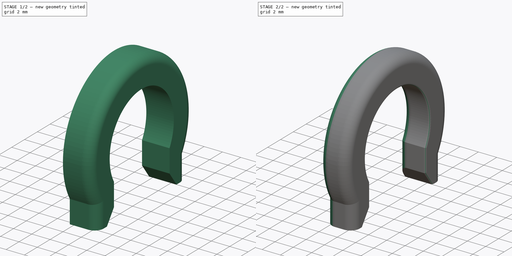
[diagram: build sequence overview — one tinted view per stage of 2, left to right]
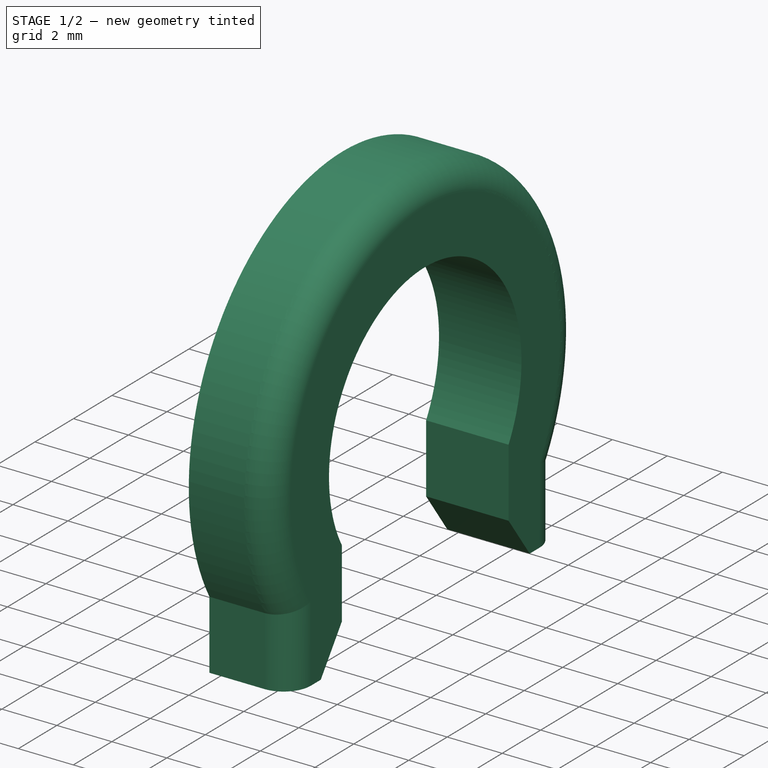
[diagram: stage 1 of 2 — iso view after this stage's code; geometry added in this stage tinted green]
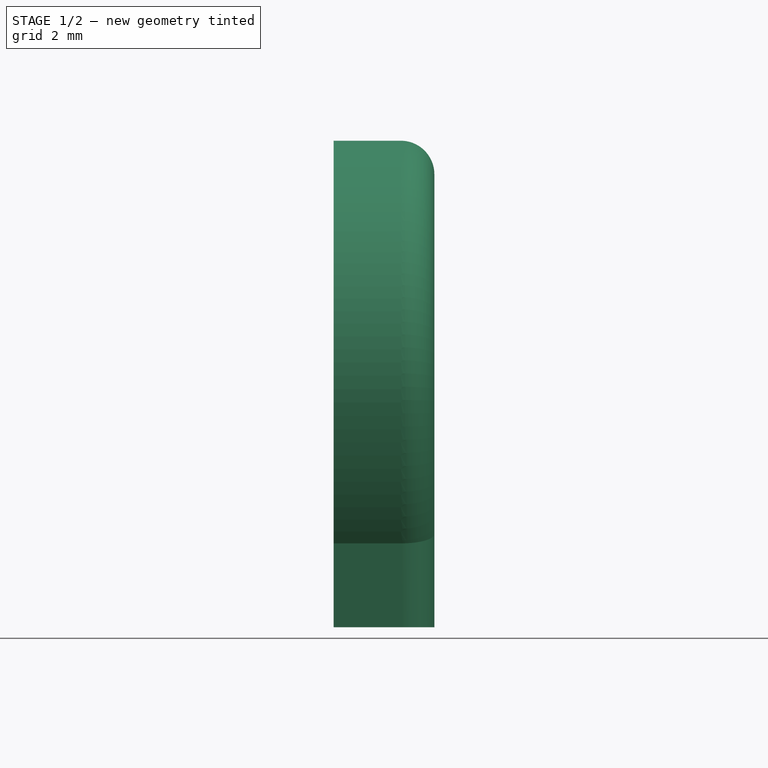
[diagram: stage 1 of 2 — front view after this stage's code; geometry added in this stage tinted green]
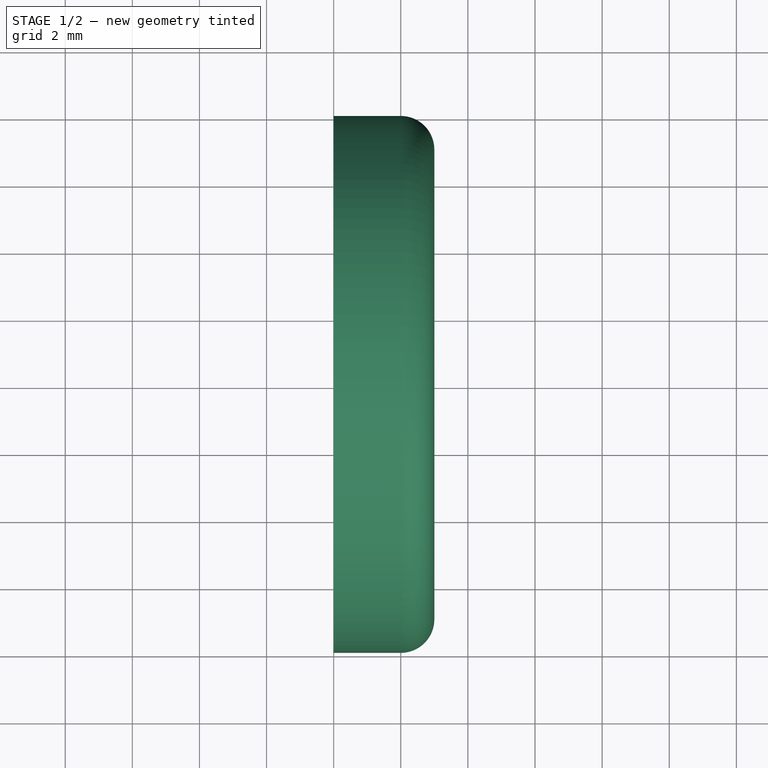
[diagram: stage 1 of 2 — top view after this stage's code; geometry added in this stage tinted green]
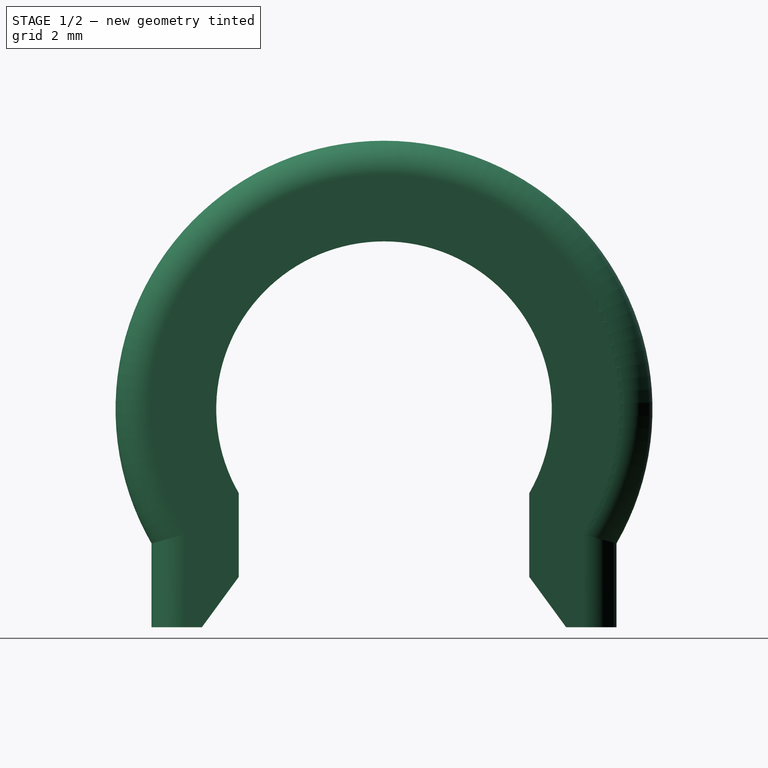
[diagram: stage 1 of 2 — right view after this stage's code; geometry added in this stage tinted green]
FCSTD DOCUMENT  (FreeCAD 1.0R38641 +468 (Git))
Label: probe-holder-4-mm-screw-clip
License: All rights reserved
LicenseURL: http://en.wikipedia.org/wiki/All_rights_reserved
objects: PartDesign::Fillet×3, Sketcher::SketchObject×1, PartDesign::Pad×1, PartDesign::Body×1
note: 15 computed .brp shape members not serialized (recipe doc carries the construction recipe); baked Part::Feature solids carry a one-line shape summary decoded from their .brp

FEATURE [Sketcher::SketchObject] Sketch
  ArcFitTolerance = 1e-06
  AttachmentSupport = -> [YZ_Plane]
  FullyConstrained = true
  MakeInternals = false
  MapMode = 5
  Placement = pos=(0,0,0) rot=(0.57735,0.57735,0.57735;2.0944rad)
  sketch-geometry (10):
    g0: ArcOfCircle CenterX=0 CenterY=0 CenterZ=0 NormalX=0 NormalY=0 NormalZ=1 AngleXU=0 Radius=5 StartAngle=5.75959 EndAngle=9.94838
    g1: ArcOfCircle CenterX=0 CenterY=0 CenterZ=0 NormalX=0 NormalY=0 NormalZ=1 AngleXU=0 Radius=8 StartAngle=5.75959 EndAngle=9.94838
    g2: LineSegment StartX=-6.9282 StartY=-4 StartZ=0 EndX=-6.9282 EndY=-6.5 EndZ=0
    g3: LineSegment StartX=-6.9282 StartY=-6.5 StartZ=0 EndX=-5.4282 EndY=-6.5 EndZ=0
    g4: LineSegment StartX=-4.33013 StartY=-2.5 StartZ=0 EndX=-4.33013 EndY=-5 EndZ=0
    g5: LineSegment StartX=-4.33013 StartY=-5 StartZ=0 EndX=-5.4282 EndY=-6.5 EndZ=0
    g6: LineSegment StartX=6.9282 StartY=-4 StartZ=0 EndX=6.9282 EndY=-6.5 EndZ=0
    g7: LineSegment StartX=4.33013 StartY=-2.5 StartZ=0 EndX=4.33013 EndY=-5 EndZ=0
    g8: LineSegment StartX=6.9282 StartY=-6.5 StartZ=0 EndX=5.4282 EndY=-6.5 EndZ=0
    g9: LineSegment StartX=4.33013 StartY=-5 StartZ=0 EndX=5.4282 EndY=-6.5 EndZ=0
  constraints (30):
    c: Radius(g0) = 5
    c: Angle(g0) = 4.18879
    c: Coincident(g0,g-1)
    c: Horizontal(g0,g0)
    c: Radius(g1) = 8
    c: Angle(g1) = 4.18879
    c: Coincident(g1,g0)
    c: Horizontal(g1,g1)
    c: Distance(g2) = 2.5
    c: Coincident(g2,g1)
    c: Vertical(g2)
    c: Distance(g3) = 1.5
    c: Coincident(g3,g2)
    c: Horizontal(g3)
    c: Distance(g4) = 2.5
    c: Coincident(g4,g0)
    c: Vertical(g4)
    c: Coincident(g5,g4)
    c: Coincident(g5,g3)
    c: Distance(g6) = 2.5
    c: Coincident(g6,g1)
    c: Vertical(g6)
    c: Distance(g7) = 2.5
    c: Coincident(g7,g0)
    c: Vertical(g7)
    c: Distance(g8) = 1.5
    c: Coincident(g8,g6)
    c: Horizontal(g8)
    c: Coincident(g9,g7)
    c: Coincident(g9,g8)
FEATURE [PartDesign::Pad] Pad
  Direction = (1,0,0)
  Length = 3
  Length2 = 10
  Placement = pos=(0,0,0) rot=(1,1,1;2.0944rad)
  Profile = -> Sketch
  ReferenceAxis = -> Sketch [N_Axis]
  Refine = true
  Suppressed = false
  Type = 0
FEATURE [PartDesign::Fillet] Fillet
  Base = -> Pad [Edge16,Edge19,Edge22]
  BaseFeature = -> Pad
  Placement = pos=(0,0,0) rot=(1,1,1;2.0944rad)
  Radius = 1
  Refine = true
  SupportTransform = false
  Suppressed = false
  UseAllEdges = false
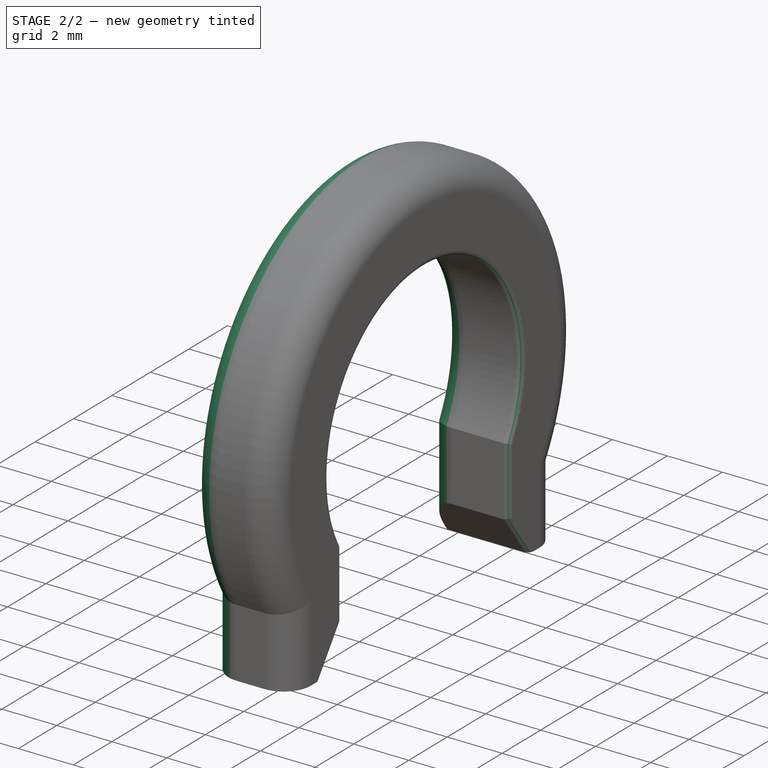
[diagram: stage 2 of 2 — iso view after this stage's code; geometry added in this stage tinted green]
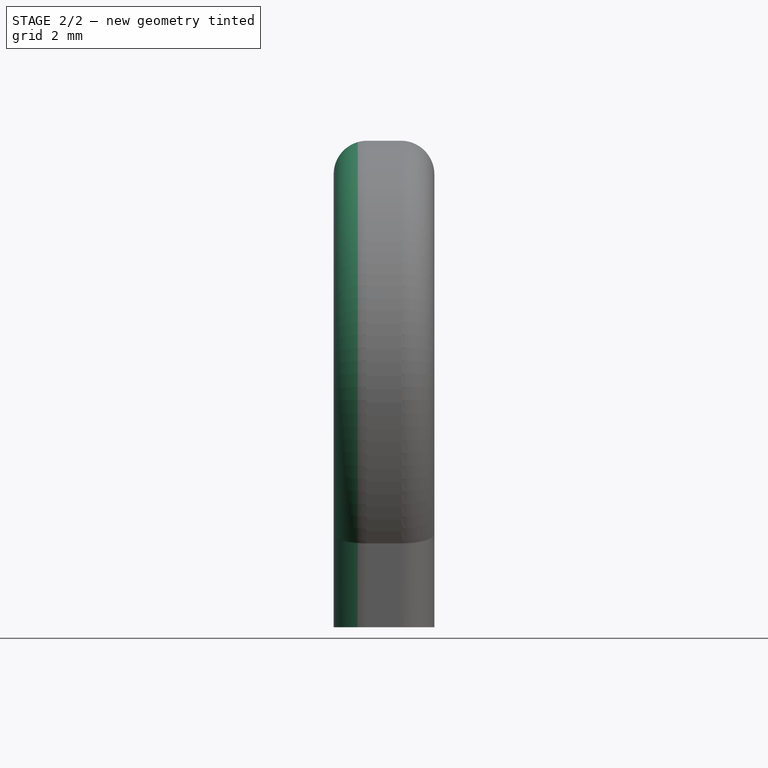
[diagram: stage 2 of 2 — front view after this stage's code; geometry added in this stage tinted green]
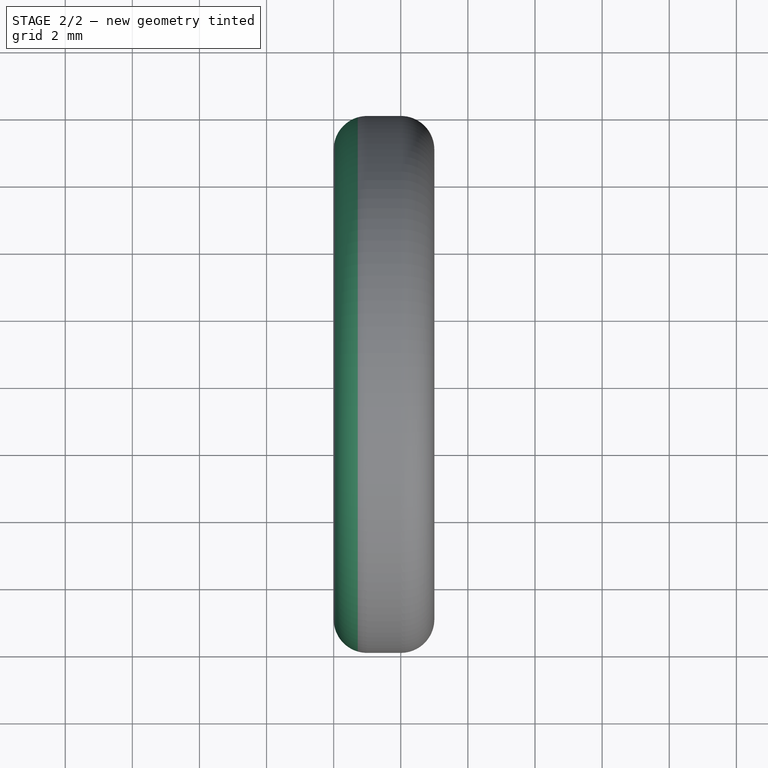
[diagram: stage 2 of 2 — top view after this stage's code; geometry added in this stage tinted green]
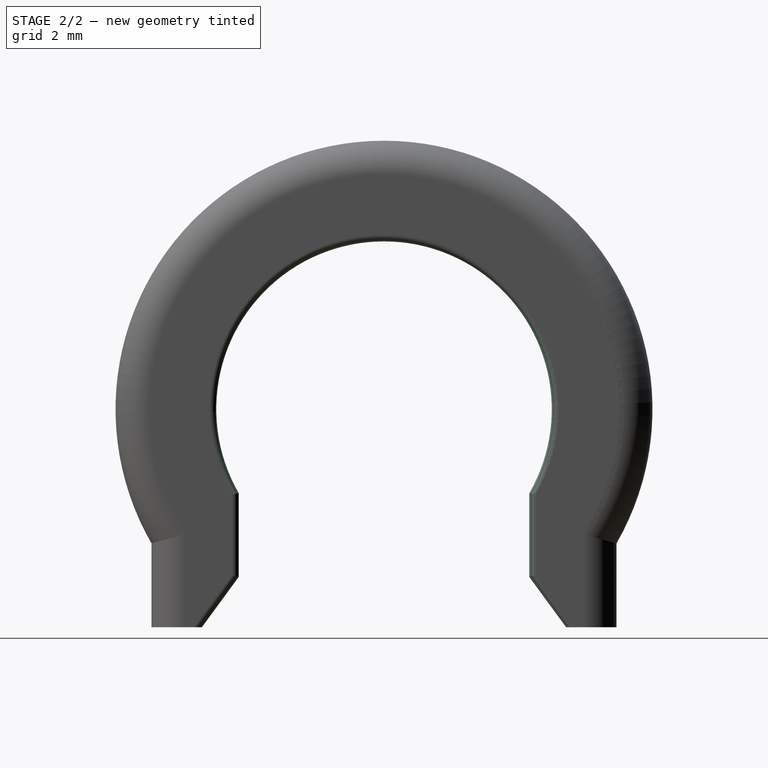
[diagram: stage 2 of 2 — right view after this stage's code; geometry added in this stage tinted green]
FEATURE [PartDesign::Fillet] Fillet001
  Base = -> Fillet [Edge23,Edge21,Edge19,Edge25,Edge26]
  BaseFeature = -> Fillet
  Placement = pos=(0,0,0) rot=(1,1,1;2.0944rad)
  Radius = 0.2
  Refine = true
  SupportTransform = false
  Suppressed = false
  UseAllEdges = false
FEATURE [PartDesign::Fillet] Fillet002
  Base = -> Fillet001 [Edge26,Edge27,Edge30,Edge24,Edge25,Edge23]
  BaseFeature = -> Fillet001
  Placement = pos=(0,0,0) rot=(1,1,1;2.0944rad)
  Radius = 1
  Refine = true
  SupportTransform = false
  Suppressed = false
  UseAllEdges = false
FEATURE [PartDesign::Body] Body
  AllowCompound = false
  Group = -> [Sketch,Pad,Fillet,Fillet001,Fillet002]
  Origin = -> Origin
  Tip = -> Fillet002
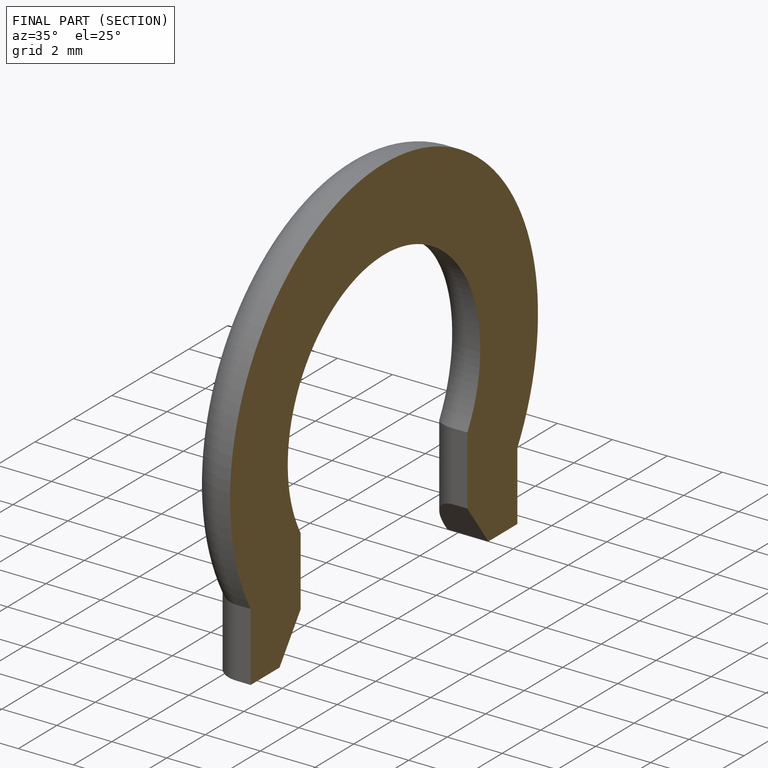
[diagram: finished part — half-section view (interior)]
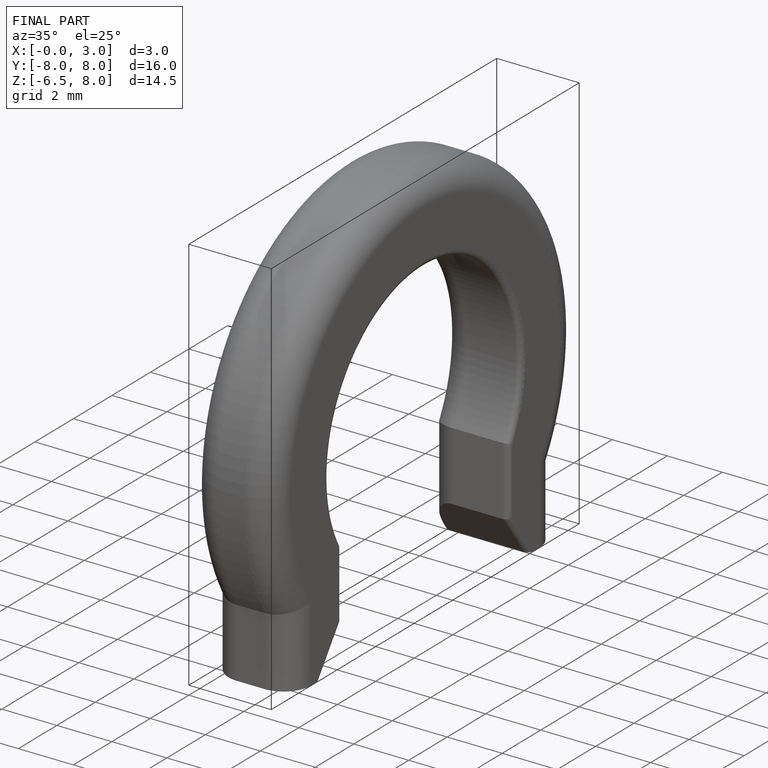
[diagram: finished part — iso view with bounding-box wireframe]
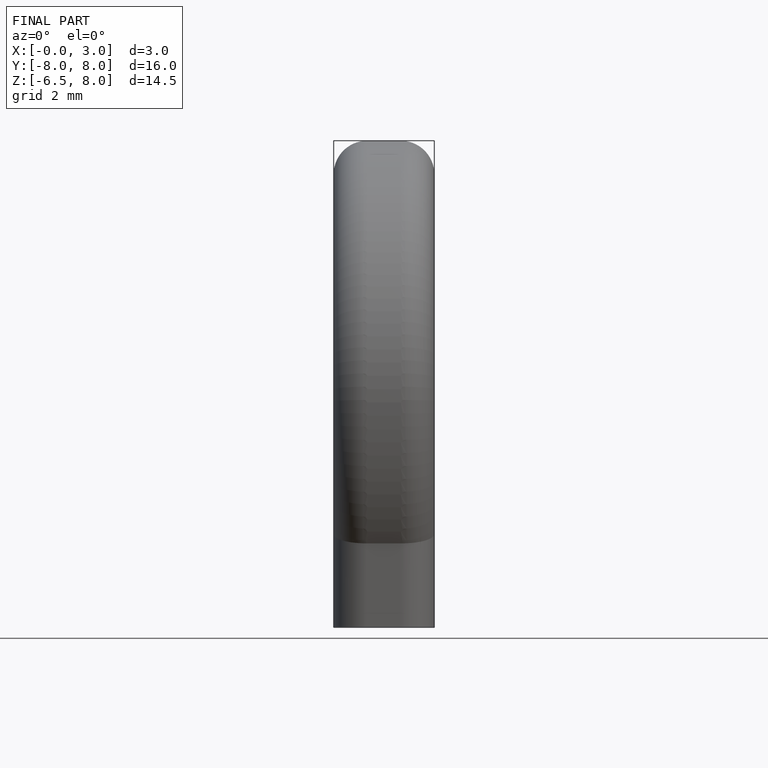
[diagram: finished part — front view with bounding-box wireframe]
